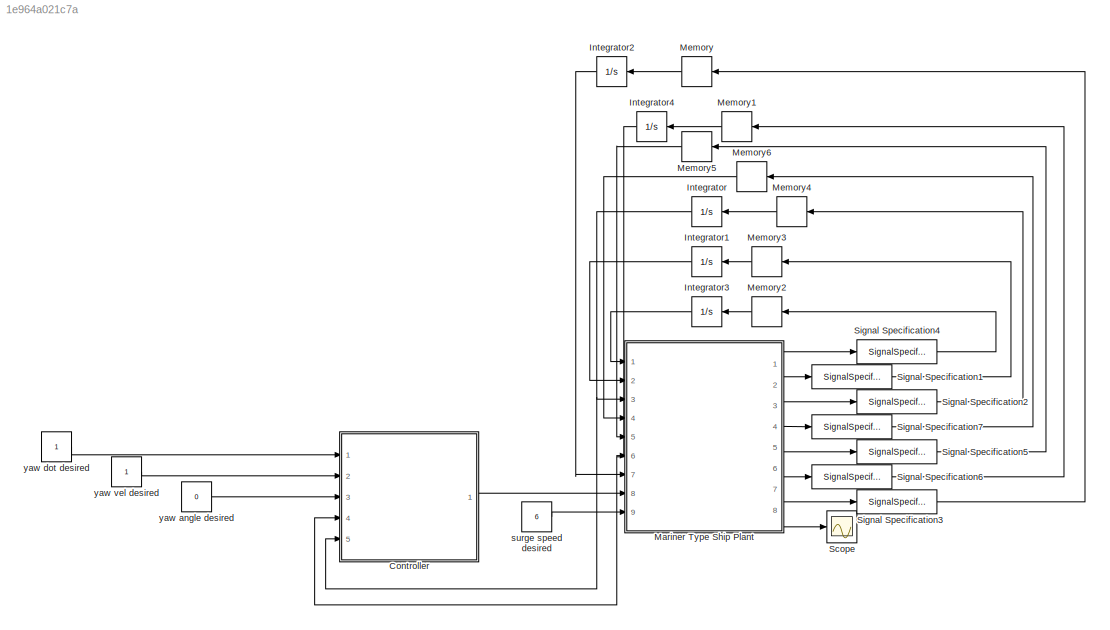
MODEL slx_1e964a021c7a
KIND model
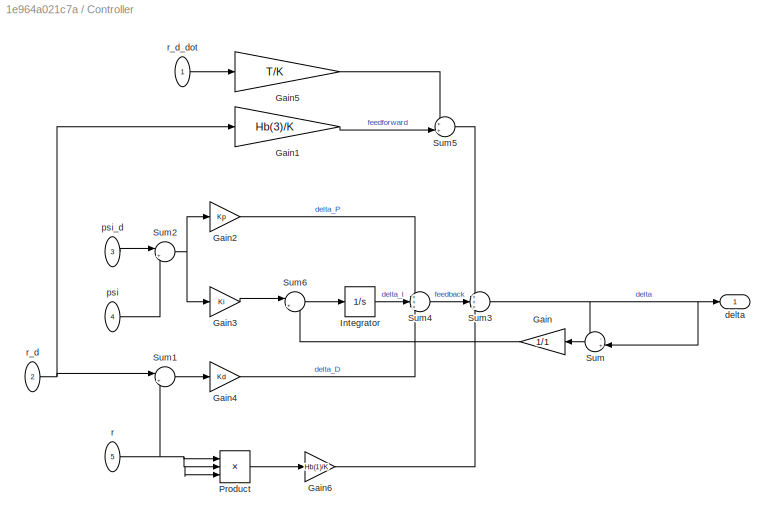
BLOCK [SubSystem] Controller
  FunctionWithSeparateData = off
  InitFcn = load('modelParameters.mat')
  MaskHideContents = off
  MinAlgLoopOccurrences = off
  Opaque = off
  Ports = [5, 1]
  PropExecContextOutsideSubsystem = off
  RTWSystemCode = Auto
  RequestExecContextInheritance = off
BLOCK [Gain] Controller/Gain
  Gain = 1/1
  OutDataTypeStr = Inherit: Inherit via internal rule
  ParamDataTypeStr = Inherit: Inherit via internal rule
  SaturateOnIntegerOverflow = off
BLOCK [Gain] Controller/Gain1
  Gain = Hb(3)/K
  OutDataTypeStr = Inherit: Inherit via internal rule
  ParamDataTypeStr = Inherit: Inherit via internal rule
  SaturateOnIntegerOverflow = off
BLOCK [Gain] Controller/Gain2
  Gain = Kp
  OutDataTypeStr = Inherit: Inherit via internal rule
  ParamDataTypeStr = Inherit: Inherit via internal rule
  SaturateOnIntegerOverflow = off
BLOCK [Gain] Controller/Gain3
  Gain = Ki
  OutDataTypeStr = Inherit: Inherit via internal rule
  ParamDataTypeStr = Inherit: Inherit via internal rule
  SaturateOnIntegerOverflow = off
BLOCK [Gain] Controller/Gain4
  Gain = Kd
  OutDataTypeStr = Inherit: Inherit via internal rule
  ParamDataTypeStr = Inherit: Inherit via internal rule
  SaturateOnIntegerOverflow = off
BLOCK [Gain] Controller/Gain5
  Gain = T/K
  OutDataTypeStr = Inherit: Inherit via internal rule
  ParamDataTypeStr = Inherit: Inherit via internal rule
  SaturateOnIntegerOverflow = off
BLOCK [Gain] Controller/Gain6
  Gain = Hb(1)/K
  OutDataTypeStr = Inherit: Inherit via internal rule
  ParamDataTypeStr = Inherit: Inherit via internal rule
  SaturateOnIntegerOverflow = off
BLOCK [Integrator] Controller/Integrator
  Ports = [1, 1]
BLOCK [Product] Controller/Product
  InputSameDT = off
  Inputs = 3
  OutDataTypeStr = Inherit: Inherit via internal rule
  Ports = [3, 1]
  SaturateOnIntegerOverflow = off
BLOCK [Sum] Controller/Sum
  IconShape = round
  InputSameDT = off
  Inputs = -+|
  OutDataTypeStr = Inherit: Inherit via internal rule
  Ports = [2, 1]
  SaturateOnIntegerOverflow = off
BLOCK [Sum] Controller/Sum1
  IconShape = round
  InputSameDT = off
  Inputs = |+-
  OutDataTypeStr = Inherit: Inherit via internal rule
  Ports = [2, 1]
  SaturateOnIntegerOverflow = off
BLOCK [Sum] Controller/Sum2
  IconShape = round
  InputSameDT = off
  Inputs = |+-
  OutDataTypeStr = Inherit: Inherit via internal rule
  Ports = [2, 1]
  SaturateOnIntegerOverflow = off
BLOCK [Sum] Controller/Sum3
  IconShape = round
  InputSameDT = off
  Inputs = +++
  OutDataTypeStr = Inherit: Inherit via internal rule
  Ports = [3, 1]
  SaturateOnIntegerOverflow = off
BLOCK [Sum] Controller/Sum4
  IconShape = round
  InputSameDT = off
  Inputs = +++
  OutDataTypeStr = Inherit: Inherit via internal rule
  Ports = [3, 1]
  SaturateOnIntegerOverflow = off
BLOCK [Sum] Controller/Sum5
  IconShape = round
  InputSameDT = off
  Inputs = ++|
  OutDataTypeStr = Inherit: Inherit via internal rule
  Ports = [2, 1]
  SaturateOnIntegerOverflow = off
BLOCK [Sum] Controller/Sum6
  IconShape = round
  InputSameDT = off
  Inputs = |++
  OutDataTypeStr = Inherit: Inherit via internal rule
  Ports = [2, 1]
  SaturateOnIntegerOverflow = off
BLOCK [Outport] Controller/delta
  IconDisplay = Port number
BLOCK [Inport] Controller/psi
  IconDisplay = Port number
  Port = 4
BLOCK [Inport] Controller/psi_d
  IconDisplay = Port number
  Port = 3
BLOCK [Inport] Controller/r
  IconDisplay = Port number
  Port = 5
BLOCK [Inport] Controller/r_d
  IconDisplay = Port number
  Port = 2
BLOCK [Inport] Controller/r_d_dot
  IconDisplay = Port number
BLOCK [Integrator] Integrator
  Ports = [1, 1]
BLOCK [Integrator] Integrator1
  Ports = [1, 1]
BLOCK [Integrator] Integrator2
  Ports = [1, 1]
BLOCK [Integrator] Integrator3
  Ports = [1, 1]
BLOCK [Integrator] Integrator4
  Ports = [1, 1]
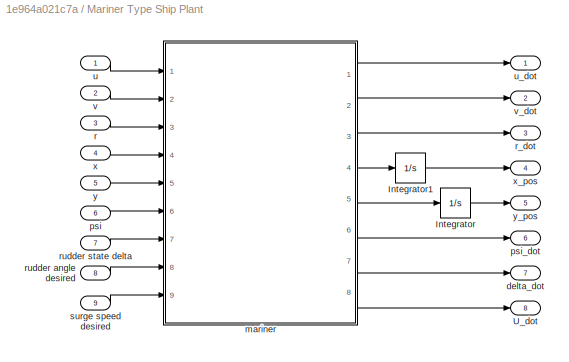
BLOCK [SubSystem] Mariner Type Ship Plant
  FunctionWithSeparateData = off
  MaskHideContents = off
  MinAlgLoopOccurrences = off
  Opaque = off
  Ports = [9, 8]
  PropExecContextOutsideSubsystem = off
  RTWSystemCode = Auto
  RequestExecContextInheritance = off
BLOCK [Integrator] Mariner Type Ship Plant/Integrator
  Ports = [1, 1]
BLOCK [Integrator] Mariner Type Ship Plant/Integrator1
  Ports = [1, 1]
BLOCK [Outport] Mariner Type Ship Plant/U_dot
  IconDisplay = Port number
  Port = 8
BLOCK [Outport] Mariner Type Ship Plant/delta_dot
  IconDisplay = Port number
  Port = 7
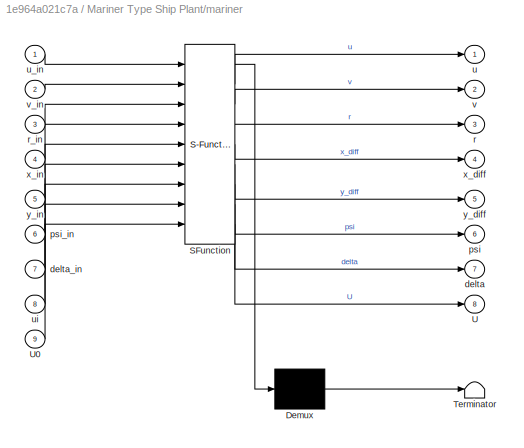
BLOCK [SubSystem] Mariner Type Ship Plant/mariner
  ErrorFcn = Stateflow.Translate.translate
  FunctionWithSeparateData = off
  MaskHideContents = off
  MinAlgLoopOccurrences = off
  Opaque = off
  PermitHierarchicalResolution = ExplicitOnly
  Ports = [9, 8]
  PropExecContextOutsideSubsystem = off
  RTWSystemCode = Auto
  RequestExecContextInheritance = off
  SFBlockType = MATLAB Function
  TreatAsAtomicUnit = on
BLOCK [Demux] Mariner Type Ship Plant/mariner/ Demux 
  Outputs = 1
  Ports = [1, 1]
BLOCK [S-Function] Mariner Type Ship Plant/mariner/ SFunction 
  EnableBusSupport = on
  FunctionName = sf_sfun
  PortCounts = [9 9]
  Ports = [9, 9]
  Tag = Stateflow S-Function wopwop 2
BLOCK [Terminator] Mariner Type Ship Plant/mariner/ Terminator 
BLOCK [Outport] Mariner Type Ship Plant/mariner/U
  IconDisplay = Port number
  Port = 8
BLOCK [Inport] Mariner Type Ship Plant/mariner/U0
  IconDisplay = Port number
  Port = 9
BLOCK [Outport] Mariner Type Ship Plant/mariner/delta
  IconDisplay = Port number
  Port = 7
BLOCK [Inport] Mariner Type Ship Plant/mariner/delta_in
  IconDisplay = Port number
  Port = 7
BLOCK [Outport] Mariner Type Ship Plant/mariner/psi
  IconDisplay = Port number
  Port = 6
BLOCK [Inport] Mariner Type Ship Plant/mariner/psi_in
  IconDisplay = Port number
  Port = 6
BLOCK [Outport] Mariner Type Ship Plant/mariner/r
  IconDisplay = Port number
  Port = 3
BLOCK [Inport] Mariner Type Ship Plant/mariner/r_in
  IconDisplay = Port number
  Port = 3
BLOCK [Outport] Mariner Type Ship Plant/mariner/u
  IconDisplay = Port number
BLOCK [Inport] Mariner Type Ship Plant/mariner/u_in
  IconDisplay = Port number
BLOCK [Inport] Mariner Type Ship Plant/mariner/ui
  IconDisplay = Port number
  Port = 8
BLOCK [Outport] Mariner Type Ship Plant/mariner/v
  IconDisplay = Port number
  Port = 2
BLOCK [Inport] Mariner Type Ship Plant/mariner/v_in
  IconDisplay = Port number
  Port = 2
BLOCK [Outport] Mariner Type Ship Plant/mariner/x_diff
  IconDisplay = Port number
  Port = 4
BLOCK [Inport] Mariner Type Ship Plant/mariner/x_in
  IconDisplay = Port number
  Port = 4
BLOCK [Outport] Mariner Type Ship Plant/mariner/y_diff
  IconDisplay = Port number
  Port = 5
BLOCK [Inport] Mariner Type Ship Plant/mariner/y_in
  IconDisplay = Port number
  Port = 5
BLOCK [Inport] Mariner Type Ship Plant/psi
  IconDisplay = Port number
  Port = 6
BLOCK [Outport] Mariner Type Ship Plant/psi_dot
  IconDisplay = Port number
  Port = 6
BLOCK [Inport] Mariner Type Ship Plant/r
  IconDisplay = Port number
  Port = 3
BLOCK [Outport] Mariner Type Ship Plant/r_dot
  IconDisplay = Port number
  Port = 3
BLOCK [Inport] Mariner Type Ship Plant/rudder angle desired
  IconDisplay = Port number
  Port = 8
BLOCK [Inport] Mariner Type Ship Plant/rudder state delta
  IconDisplay = Port number
  Port = 7
BLOCK [Inport] Mariner Type Ship Plant/surge speed desired
  IconDisplay = Port number
  Port = 9
BLOCK [Inport] Mariner Type Ship Plant/u
  IconDisplay = Port number
BLOCK [Outport] Mariner Type Ship Plant/u_dot
  IconDisplay = Port number
BLOCK [Inport] Mariner Type Ship Plant/v
  IconDisplay = Port number
  Port = 2
BLOCK [Outport] Mariner Type Ship Plant/v_dot
  IconDisplay = Port number
  Port = 2
BLOCK [Inport] Mariner Type Ship Plant/x
  IconDisplay = Port number
  Port = 4
BLOCK [Outport] Mariner Type Ship Plant/x_pos
  IconDisplay = Port number
  Port = 4
BLOCK [Inport] Mariner Type Ship Plant/y
  IconDisplay = Port number
  Port = 5
BLOCK [Outport] Mariner Type Ship Plant/y_pos
  IconDisplay = Port number
  Port = 5
BLOCK [Memory] Memory
BLOCK [Memory] Memory1
BLOCK [Memory] Memory2
BLOCK [Memory] Memory3
BLOCK [Memory] Memory4
BLOCK [Memory] Memory5
BLOCK [Memory] Memory6
BLOCK [Scope] Scope
  DataFormat = StructureWithTime
  Floating = off
  NumInputPorts = 1
  Ports = [1]
  SampleTime = 0
  ShowLegends = off
BLOCK [SignalSpecification] Signal Specification1
  Dimensions = 1
BLOCK [SignalSpecification] Signal Specification2
  Dimensions = 1
BLOCK [SignalSpecification] Signal Specification3
  Dimensions = 1
BLOCK [SignalSpecification] Signal Specification4
  Dimensions = 1
BLOCK [SignalSpecification] Signal Specification5
  Dimensions = 1
BLOCK [SignalSpecification] Signal Specification6
  Dimensions = 1
BLOCK [SignalSpecification] Signal Specification7
  Dimensions = 1
BLOCK [Constant] surge speed desired
  Value = 6
BLOCK [Constant] yaw angle desired
  Value = 0
BLOCK [Constant] yaw dot desired
BLOCK [Constant] yaw vel desired
LINE Controller/Gain1:1 -> Controller/Sum5:2
LINE Controller/Gain2:1 -> Controller/Sum4:1
LINE Controller/Gain3:1 -> Controller/Sum6:1
LINE Controller/Gain4:1 -> Controller/Sum4:3
LINE Controller/Gain5:1 -> Controller/Sum5:1
LINE Controller/Gain6:1 -> Controller/Sum3:3
LINE Controller/Gain:1 -> Controller/Sum6:2
LINE Controller/Integrator:1 -> Controller/Sum4:2
LINE Controller/Product:1 -> Controller/Gain6:1
LINE Controller/Sum1:1 -> Controller/Gain4:1
NET Controller/Sum2:1 -> Controller/Gain2:1, Controller/Gain3:1
NET Controller/Sum3:1 -> Controller/Sum:1, Controller/Sum:2, Controller/delta:1
LINE Controller/Sum4:1 -> Controller/Sum3:2
LINE Controller/Sum5:1 -> Controller/Sum3:1
LINE Controller/Sum6:1 -> Controller/Integrator:1
LINE Controller/Sum:1 -> Controller/Gain:1
LINE Controller/psi:1 -> Controller/Sum2:2
LINE Controller/psi_d:1 -> Controller/Sum2:1
NET Controller/r:1 -> Controller/Product:1, Controller/Product:2, Controller/Product:3, Controller/Sum1:2
NET Controller/r_d:1 -> Controller/Gain1:1, Controller/Sum1:1
LINE Controller/r_d_dot:1 -> Controller/Gain5:1
LINE Controller:1 -> Mariner Type Ship Plant:8
LINE Integrator1:1 -> Mariner Type Ship Plant:2
LINE Integrator2:1 -> Mariner Type Ship Plant:7
LINE Integrator3:1 -> Mariner Type Ship Plant:1
NET Integrator4:1 -> Controller:4, Mariner Type Ship Plant:6
NET Integrator:1 -> Controller:5, Mariner Type Ship Plant:3
LINE Mariner Type Ship Plant/Integrator1:1 -> Mariner Type Ship Plant/x_pos:1
LINE Mariner Type Ship Plant/Integrator:1 -> Mariner Type Ship Plant/y_pos:1
LINE Mariner Type Ship Plant/mariner:1 -> Mariner Type Ship Plant/u_dot:1
LINE Mariner Type Ship Plant/mariner:2 -> Mariner Type Ship Plant/v_dot:1
LINE Mariner Type Ship Plant/mariner:3 -> Mariner Type Ship Plant/r_dot:1
LINE Mariner Type Ship Plant/mariner:4 -> Mariner Type Ship Plant/Integrator1:1
LINE Mariner Type Ship Plant/mariner:5 -> Mariner Type Ship Plant/Integrator:1
LINE Mariner Type Ship Plant/mariner:6 -> Mariner Type Ship Plant/psi_dot:1
LINE Mariner Type Ship Plant/mariner:7 -> Mariner Type Ship Plant/delta_dot:1
LINE Mariner Type Ship Plant/mariner:8 -> Mariner Type Ship Plant/U_dot:1
LINE Mariner Type Ship Plant/psi:1 -> Mariner Type Ship Plant/mariner:6
LINE Mariner Type Ship Plant/r:1 -> Mariner Type Ship Plant/mariner:3
LINE Mariner Type Ship Plant/rudder angle desired:1 -> Mariner Type Ship Plant/mariner:8
LINE Mariner Type Ship Plant/rudder state delta:1 -> Mariner Type Ship Plant/mariner:7
LINE Mariner Type Ship Plant/surge speed desired:1 -> Mariner Type Ship Plant/mariner:9
LINE Mariner Type Ship Plant/u:1 -> Mariner Type Ship Plant/mariner:1
LINE Mariner Type Ship Plant/v:1 -> Mariner Type Ship Plant/mariner:2
LINE Mariner Type Ship Plant/x:1 -> Mariner Type Ship Plant/mariner:4
LINE Mariner Type Ship Plant/y:1 -> Mariner Type Ship Plant/mariner:5
LINE Mariner Type Ship Plant:1 -> Signal Specification4:1
LINE Mariner Type Ship Plant:2 -> Signal Specification1:1
LINE Mariner Type Ship Plant:3 -> Signal Specification2:1
LINE Mariner Type Ship Plant:4 -> Signal Specification7:1
LINE Mariner Type Ship Plant:5 -> Signal Specification5:1
LINE Mariner Type Ship Plant:6 -> Signal Specification6:1
LINE Mariner Type Ship Plant:7 -> Signal Specification3:1
LINE Mariner Type Ship Plant:8 -> Scope:1
LINE Memory1:1 -> Integrator4:1
LINE Memory2:1 -> Integrator3:1
LINE Memory3:1 -> Integrator1:1
LINE Memory4:1 -> Integrator:1
LINE Memory5:1 -> Mariner Type Ship Plant:5
LINE Memory6:1 -> Mariner Type Ship Plant:4
LINE Memory:1 -> Integrator2:1
LINE Signal Specification1:1 -> Memory3:1
LINE Signal Specification2:1 -> Memory4:1
LINE Signal Specification3:1 -> Memory:1
LINE Signal Specification4:1 -> Memory2:1
LINE Signal Specification5:1 -> Memory5:1
LINE Signal Specification6:1 -> Memory1:1
LINE Signal Specification7:1 -> Memory6:1
LINE surge speed desired:1 -> Mariner Type Ship Plant:9
LINE yaw angle desired:1 -> Controller:3
LINE yaw dot desired:1 -> Controller:1
LINE yaw vel desired:1 -> Controller:2
note: NET lines group one-source signal fan-out (src -> all destinations, sorted); 1:1 wires keep LINE
